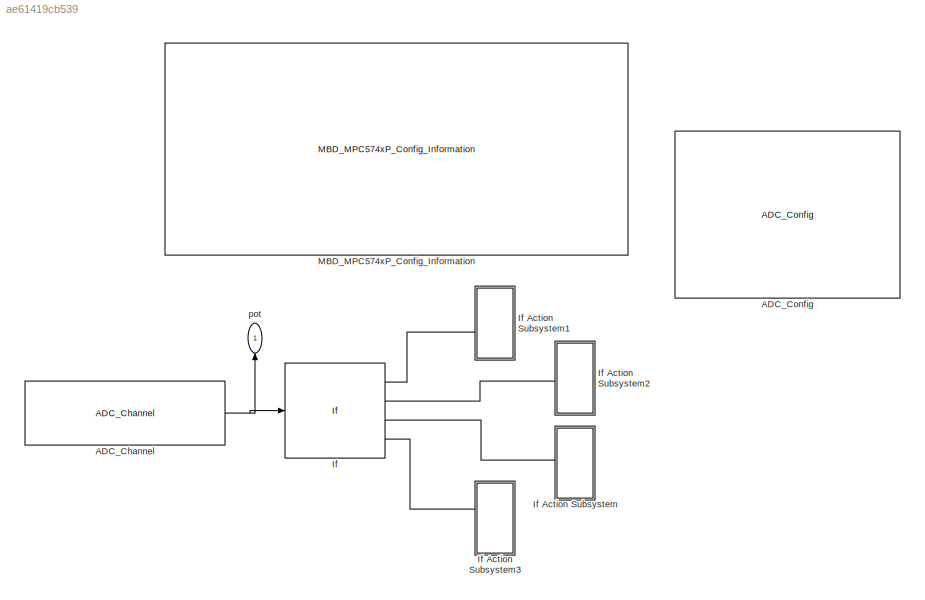
MODEL slx_ae61419cb539
KIND model
CONFIG AbsTol = auto
CONFIG EnableMultiTasking = off
CONFIG FixedStep = 1e-5
CONFIG InitFcn = mbd_pnt_consistency_checks(bdroot(gcs));
CONFIG MaxStep = auto
CONFIG MinStep = auto
CONFIG RelTol = 1e-3
CONFIG SampleTimeConstraint = Unconstrained
CONFIG Solver = FixedStepDiscrete
CONFIG SolverName = FixedStepDiscrete
CONFIG StartTime = 0.0
CONFIG StopTime = 5
BLOCK [Reference] ADC_Channel  REF=mbd_pnt_ec_toolbox/MPC574xP/Motor Control Blocks/ADC_Channel
  Ports = [0, 1]
  SourceBlock = mbd_pnt_ec_toolbox/MPC574xP/Motor Control Blocks/ADC_Channel
  SourceProductName = Model Based Design Toolbox for MPC574xP
  SourceType = adc_pnt_channel_block
BLOCK [Reference] ADC_Config  REF=mbd_pnt_ec_toolbox/MPC574xP/Motor Control Blocks/ADC_Config
  Ports = []
  SourceBlock = mbd_pnt_ec_toolbox/MPC574xP/Motor Control Blocks/ADC_Config
  SourceProductName = Model Based Design Toolbox for MPC574xP
  SourceType = adc_pnt_config_block
BLOCK [If] If
  ElseIfExpressions = (u1 >= 1000) & (u1 <= 2000), (u1 > 2000) & (u1 <= 3000)
  IfExpression = u1 < 1000
  Ports = [1, 4]
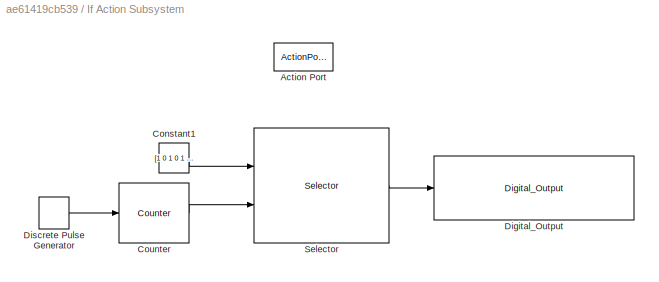
BLOCK [SubSystem] If Action Subsystem
  Ports = [0, 0, 0, 0, 0, 0, 0, 1]
  RequestExecContextInheritance = off
  TreatAsAtomicUnit = on
BLOCK [ActionPort] If Action Subsystem/Action Port
  ActionType = elseif
BLOCK [Constant] If Action Subsystem/Constant1
  OutDataTypeStr = boolean
  Value = [1 0 1 0 1 0 1 0 1 0 1 0 1 0 1 0 1 0 1 0 1 0 1 0 1 0 1 0 1 0 0 0]
BLOCK [Reference] If Action Subsystem/Counter  REF=dspswit3/Counter
  Ports = [1, 1]
  SourceBlock = dspswit3/Counter
  SourceProductBaseCode = DS
  SourceProductName = DSP System Toolbox
  SourceType = Counter
BLOCK [Reference] If Action Subsystem/Digital_Output  REF=mbd_pnt_ec_toolbox/MPC574xP/Peripheral Interface Blocks/Digital_Output
  Ports = [1]
  SourceBlock = mbd_pnt_ec_toolbox/MPC574xP/Peripheral Interface Blocks/Digital_Output
  SourceProductName = Model Based Design Toolbox for MPC574xP
  SourceType = GPIO_PNT_Output
BLOCK [DiscretePulseGenerator] If Action Subsystem/Discrete Pulse Generator
  Period = 0.002
  Ports = [0, 1]
  PulseType = Time based
  PulseWidth = 50
BLOCK [Selector] If Action Subsystem/Selector
  IndexMode = Zero-based
  IndexOptions = Index vector (port)
  Indices = [1 3]
  InputPortWidth = 32
  OutputSizes = 1
  Ports = [2, 1]
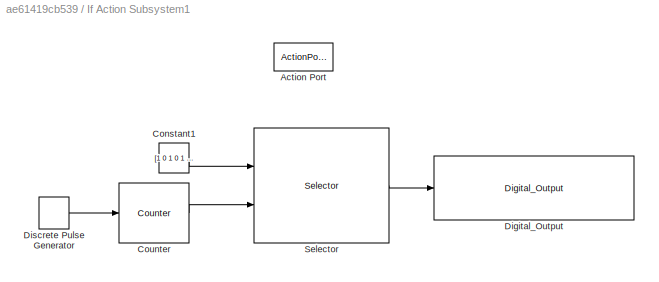
BLOCK [SubSystem] If Action Subsystem1
  Ports = [0, 0, 0, 0, 0, 0, 0, 1]
  RequestExecContextInheritance = off
  TreatAsAtomicUnit = on
BLOCK [ActionPort] If Action Subsystem1/Action Port
  ActionType = then
BLOCK [Constant] If Action Subsystem1/Constant1
  OutDataTypeStr = boolean
  Value = [1 0 1 0 1 0 1 0 1 0 1 0 1 0 1 0 1 0 1 0 1 0 1 0 1 0 1 0 1 0 0 0]
BLOCK [Reference] If Action Subsystem1/Counter  REF=dspswit3/Counter
  Ports = [1, 1]
  SourceBlock = dspswit3/Counter
  SourceProductBaseCode = DS
  SourceProductName = DSP System Toolbox
  SourceType = Counter
BLOCK [Reference] If Action Subsystem1/Digital_Output  REF=mbd_pnt_ec_toolbox/MPC574xP/Peripheral Interface Blocks/Digital_Output
  Ports = [1]
  SourceBlock = mbd_pnt_ec_toolbox/MPC574xP/Peripheral Interface Blocks/Digital_Output
  SourceProductName = Model Based Design Toolbox for MPC574xP
  SourceType = GPIO_PNT_Output
BLOCK [DiscretePulseGenerator] If Action Subsystem1/Discrete Pulse Generator
  Period = 0.01
  Ports = [0, 1]
  PulseType = Time based
  PulseWidth = 50
BLOCK [Selector] If Action Subsystem1/Selector
  IndexMode = Zero-based
  IndexOptions = Index vector (port)
  Indices = [1 3]
  InputPortWidth = 32
  OutputSizes = 1
  Ports = [2, 1]
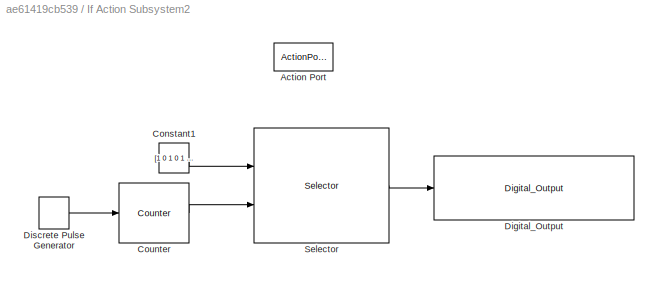
BLOCK [SubSystem] If Action Subsystem2
  Ports = [0, 0, 0, 0, 0, 0, 0, 1]
  RequestExecContextInheritance = off
  TreatAsAtomicUnit = on
BLOCK [ActionPort] If Action Subsystem2/Action Port
  ActionType = elseif
BLOCK [Constant] If Action Subsystem2/Constant1
  OutDataTypeStr = boolean
  Value = [1 0 1 0 1 0 1 0 1 0 1 0 1 0 1 0 1 0 1 0 1 0 1 0 1 0 1 0 1 0 0 0]
BLOCK [Reference] If Action Subsystem2/Counter  REF=dspswit3/Counter
  Ports = [1, 1]
  SourceBlock = dspswit3/Counter
  SourceProductBaseCode = DS
  SourceProductName = DSP System Toolbox
  SourceType = Counter
BLOCK [Reference] If Action Subsystem2/Digital_Output  REF=mbd_pnt_ec_toolbox/MPC574xP/Peripheral Interface Blocks/Digital_Output
  Ports = [1]
  SourceBlock = mbd_pnt_ec_toolbox/MPC574xP/Peripheral Interface Blocks/Digital_Output
  SourceProductName = Model Based Design Toolbox for MPC574xP
  SourceType = GPIO_PNT_Output
BLOCK [DiscretePulseGenerator] If Action Subsystem2/Discrete Pulse Generator
  Period = 0.005
  Ports = [0, 1]
  PulseType = Time based
  PulseWidth = 50
BLOCK [Selector] If Action Subsystem2/Selector
  IndexMode = Zero-based
  IndexOptions = Index vector (port)
  Indices = [1 3]
  InputPortWidth = 32
  OutputSizes = 1
  Ports = [2, 1]
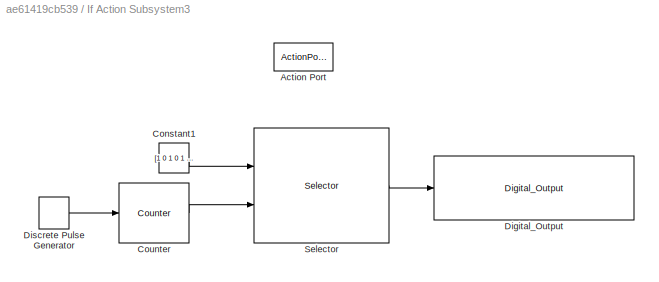
BLOCK [SubSystem] If Action Subsystem3
  Ports = [0, 0, 0, 0, 0, 0, 0, 1]
  RequestExecContextInheritance = off
  TreatAsAtomicUnit = on
BLOCK [ActionPort] If Action Subsystem3/Action Port
  ActionType = else
BLOCK [Constant] If Action Subsystem3/Constant1
  OutDataTypeStr = boolean
  Value = [1 0 1 0 1 0 1 0 1 0 1 0 1 0 1 0 1 0 1 0 1 0 1 0 1 0 1 0 1 0 0 0]
BLOCK [Reference] If Action Subsystem3/Counter  REF=dspswit3/Counter
  Ports = [1, 1]
  SourceBlock = dspswit3/Counter
  SourceProductBaseCode = DS
  SourceProductName = DSP System Toolbox
  SourceType = Counter
BLOCK [Reference] If Action Subsystem3/Digital_Output  REF=mbd_pnt_ec_toolbox/MPC574xP/Peripheral Interface Blocks/Digital_Output
  Ports = [1]
  SourceBlock = mbd_pnt_ec_toolbox/MPC574xP/Peripheral Interface Blocks/Digital_Output
  SourceProductName = Model Based Design Toolbox for MPC574xP
  SourceType = GPIO_PNT_Output
BLOCK [DiscretePulseGenerator] If Action Subsystem3/Discrete Pulse Generator
  Period = 0.001
  Ports = [0, 1]
  PulseType = Time based
  PulseWidth = 50
BLOCK [Selector] If Action Subsystem3/Selector
  IndexMode = Zero-based
  IndexOptions = Index vector (port)
  Indices = [1 3]
  InputPortWidth = 32
  OutputSizes = 1
  Ports = [2, 1]
BLOCK [Reference] MBD_MPC574xP_Config_Information  REF=mbd_pnt_ec_toolbox/MPC574xP/MBD_MPC574xP_Config_Information
  Ports = []
  SourceBlock = mbd_pnt_ec_toolbox/MPC574xP/MBD_MPC574xP_Config_Information
  SourceProductName = Model Based Design Toolbox for MPC574xP
  SourceType = MBDTBX_EC_PNT
BLOCK [Outport] pot
  IconDisplay = Port number
NET ADC_Channel:1 -> If:1, pot:1
LINE If Action Subsystem/Constant1:1 -> If Action Subsystem/Selector:1
LINE If Action Subsystem/Counter:1 -> If Action Subsystem/Selector:2
LINE If Action Subsystem/Discrete Pulse Generator:1 -> If Action Subsystem/Counter:1
LINE If Action Subsystem/Selector:1 -> If Action Subsystem/Digital_Output:1
LINE If Action Subsystem1/Constant1:1 -> If Action Subsystem1/Selector:1
LINE If Action Subsystem1/Counter:1 -> If Action Subsystem1/Selector:2
LINE If Action Subsystem1/Discrete Pulse Generator:1 -> If Action Subsystem1/Counter:1
LINE If Action Subsystem1/Selector:1 -> If Action Subsystem1/Digital_Output:1
LINE If Action Subsystem2/Constant1:1 -> If Action Subsystem2/Selector:1
LINE If Action Subsystem2/Counter:1 -> If Action Subsystem2/Selector:2
LINE If Action Subsystem2/Discrete Pulse Generator:1 -> If Action Subsystem2/Counter:1
LINE If Action Subsystem2/Selector:1 -> If Action Subsystem2/Digital_Output:1
LINE If Action Subsystem3/Constant1:1 -> If Action Subsystem3/Selector:1
LINE If Action Subsystem3/Counter:1 -> If Action Subsystem3/Selector:2
LINE If Action Subsystem3/Discrete Pulse Generator:1 -> If Action Subsystem3/Counter:1
LINE If Action Subsystem3/Selector:1 -> If Action Subsystem3/Digital_Output:1
LINE If:1 -> If Action Subsystem1:ifaction
LINE If:2 -> If Action Subsystem2:ifaction
LINE If:3 -> If Action Subsystem:ifaction
LINE If:4 -> If Action Subsystem3:ifaction
note: NET lines group one-source signal fan-out (src -> all destinations, sorted); 1:1 wires keep LINE
